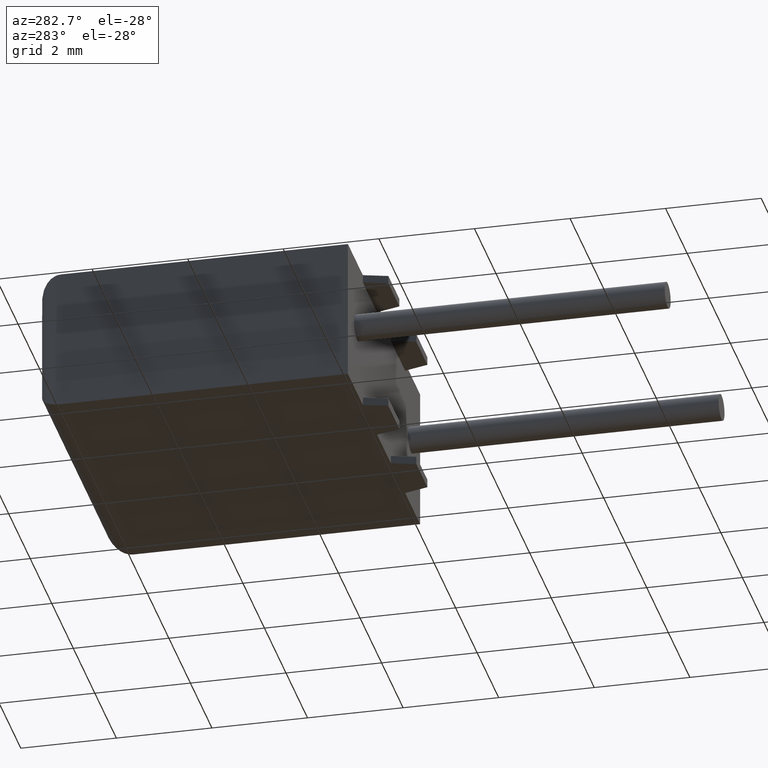
[diagram: clean part render]
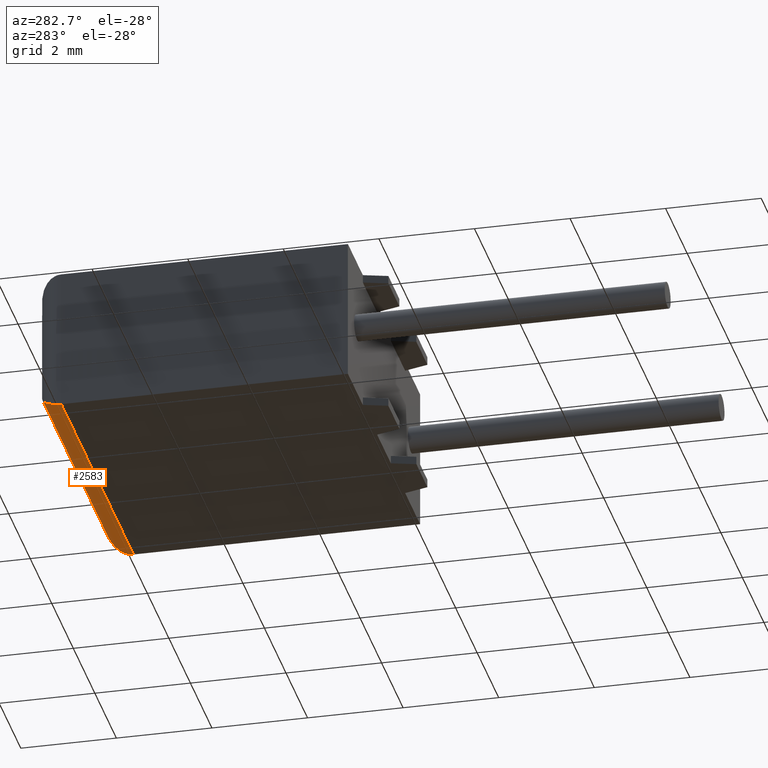
[diagram: same view with one face highlighted and labeled with its STEP entity id]
A machine part, auxiliary view. The second image highlights one B-rep face of the part: STEP entity #2583.
In plain terms, the highlighted cylindrical surface (edge-blend (fillet) strip) has radius 0.5 mm, axis along (1, 0, 0).
Its self-contained STEP definition (entity closure, byte-faithful):
#78 = LINE ( 'NONE', #1877, #1308 ) ;
#102 = CARTESIAN_POINT ( 'NONE',  ( 0.5000000000000000000, 6.500000000000000000, 0.5000000000000000000 ) ) ;
#219 = CARTESIAN_POINT ( 'NONE',  ( 6.492893218813454048, 6.500000000000000888, 0.2071067811865467123 ) ) ;
#299 =( BOUNDED_CURVE ( )  B_SPLINE_CURVE ( 3, ( #958, #465, #219, #1457 ),
 .UNSPECIFIED., .F., .F. ) 
 B_SPLINE_CURVE_WITH_KNOTS ( ( 4, 4 ),
 ( -3.552713678800500929E-15, 1.570796326794896558 ),
 .UNSPECIFIED. ) 
 CURVE ( )  GEOMETRIC_REPRESENTATION_ITEM ( )  RATIONAL_B_SPLINE_CURVE ( ( 1.000000000000000000, 0.8047378541243641603, 0.8047378541243641603, 1.000000000000000000 ) ) 
 REPRESENTATION_ITEM ( '' )  );
#393 = CARTESIAN_POINT ( 'NONE',  ( 6.700000000000000178, 5.999999999999998224, 0.000000000000000000 ) ) ;
#399 = DIRECTION ( 'NONE',  ( -1.000000000000000000, 0.000000000000000000, 0.000000000000000000 ) ) ;
#465 = CARTESIAN_POINT ( 'NONE',  ( 6.700000000000001066, 6.292893218813451206, -9.321455276579131774E-16 ) ) ;
#485 = DIRECTION ( 'NONE',  ( 1.000000000000000000, -0.000000000000000000, -0.000000000000000000 ) ) ;
#488 = EDGE_CURVE ( 'NONE', #2464, #2491, #299, .T. ) ;
#633 = CARTESIAN_POINT ( 'NONE',  ( 0.2071067811865466290, 6.500000000000000888, 0.2071067811865466290 ) ) ;
#707 = DIRECTION ( 'NONE',  ( 0.000000000000000000, 0.000000000000000000, -1.000000000000000000 ) ) ;
#717 = LINE ( 'NONE', #3219, #2158 ) ;
#765 = CYLINDRICAL_SURFACE ( 'NONE', #2255, 0.5000000000000000000 ) ;
#958 = CARTESIAN_POINT ( 'NONE',  ( 6.700000000000000178, 5.999999999999998224, 0.000000000000000000 ) ) ;
#973 = ORIENTED_EDGE ( 'NONE', *, *, #3152, .T. ) ;
#1308 = VECTOR ( 'NONE', #399, 1000.000000000000000 ) ;
#1309 = EDGE_LOOP ( 'NONE', ( #973, #3061, #1878, #2586 ) ) ;
#1393 = CARTESIAN_POINT ( 'NONE',  ( 6.200000000000001066, 6.500000000000000000, 0.5000000000000000000 ) ) ;
#1401 =( BOUNDED_CURVE ( )  B_SPLINE_CURVE ( 3, ( #2328, #3148, #633, #102 ),
 .UNSPECIFIED., .F., .F. ) 
 B_SPLINE_CURVE_WITH_KNOTS ( ( 4, 4 ),
 ( 3.141592653589789563, 4.712388980384689674 ),
 .UNSPECIFIED. ) 
 CURVE ( )  GEOMETRIC_REPRESENTATION_ITEM ( )  RATIONAL_B_SPLINE_CURVE ( ( 1.000000000000000000, 0.8047378541243641603, 0.8047378541243641603, 1.000000000000000000 ) ) 
 REPRESENTATION_ITEM ( '' )  );
#1457 = CARTESIAN_POINT ( 'NONE',  ( 6.200000000000001066, 6.500000000000000000, 0.5000000000000000000 ) ) ;
#1479 = FACE_OUTER_BOUND ( 'NONE', #1309, .T. ) ;
#1705 = VERTEX_POINT ( 'NONE', #1924 ) ;
#1764 = DIRECTION ( 'NONE',  ( 1.000000000000000000, 0.000000000000000000, 0.000000000000000000 ) ) ;
#1877 = CARTESIAN_POINT ( 'NONE',  ( 0.000000000000000000, 6.500000000000000000, 0.5000000000000000000 ) ) ;
#1878 = ORIENTED_EDGE ( 'NONE', *, *, #488, .F. ) ;
#1924 = CARTESIAN_POINT ( 'NONE',  ( 0.5000000000000000000, 6.500000000000000000, 0.5000000000000000000 ) ) ;
#2010 = CARTESIAN_POINT ( 'NONE',  ( 0.000000000000000000, 5.999999999999998224, 0.000000000000000000 ) ) ;
#2158 = VECTOR ( 'NONE', #485, 1000.000000000000000 ) ;
#2255 = AXIS2_PLACEMENT_3D ( 'NONE', #2519, #1764, #707 ) ;
#2328 = CARTESIAN_POINT ( 'NONE',  ( 0.000000000000000000, 5.999999999999998224, 0.000000000000000000 ) ) ;
#2464 = VERTEX_POINT ( 'NONE', #393 ) ;
#2491 = VERTEX_POINT ( 'NONE', #1393 ) ;
#2519 = CARTESIAN_POINT ( 'NONE',  ( 0.000000000000000000, 6.000000000000000000, 0.5000000000000000000 ) ) ;
#2583 = ADVANCED_FACE ( 'NONE', ( #1479 ), #765, .T. ) ;
#2586 = ORIENTED_EDGE ( 'NONE', *, *, #2811, .F. ) ;
#2811 = EDGE_CURVE ( 'NONE', #2850, #2464, #717, .T. ) ;
#2850 = VERTEX_POINT ( 'NONE', #2010 ) ;
#3061 = ORIENTED_EDGE ( 'NONE', *, *, #3166, .F. ) ;
#3148 = CARTESIAN_POINT ( 'NONE',  ( -9.680146019490994654E-16, 6.292893218813451206, -9.680146019490994654E-16 ) ) ;
#3152 = EDGE_CURVE ( 'NONE', #2850, #1705, #1401, .T. ) ;
#3166 = EDGE_CURVE ( 'NONE', #2491, #1705, #78, .T. ) ;
#3219 = CARTESIAN_POINT ( 'NONE',  ( 6.700000000000000178, 6.000000000000000000, 0.000000000000000000 ) ) ;